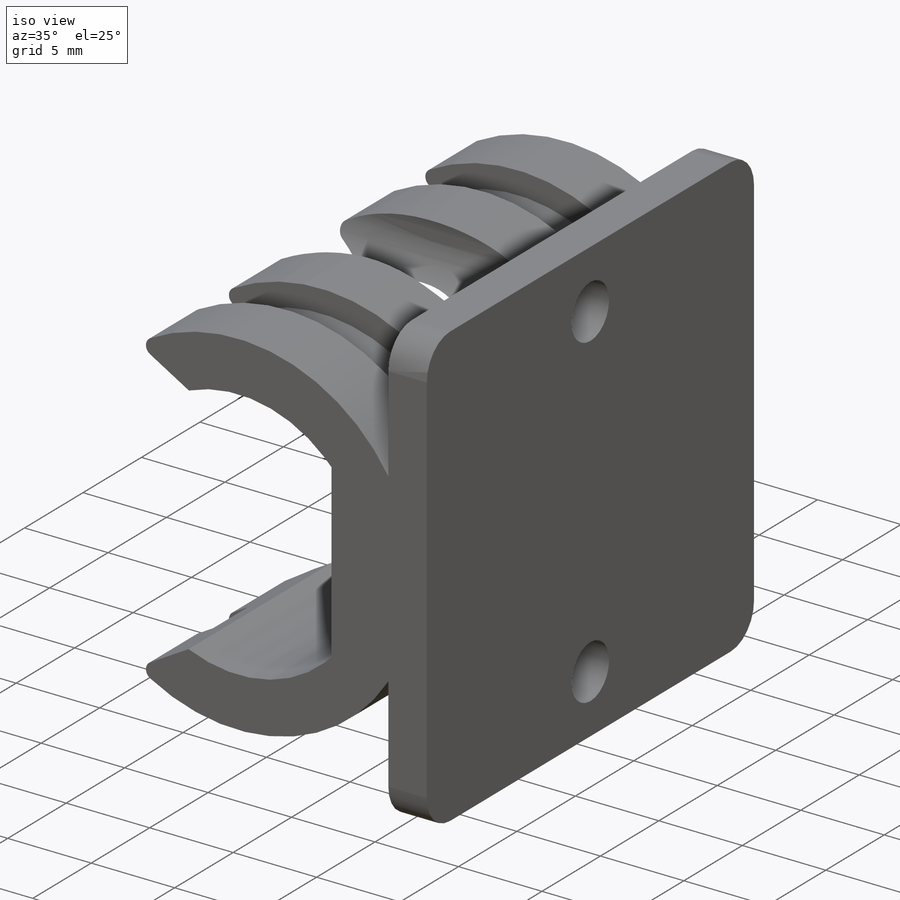
[diagram: iso view]
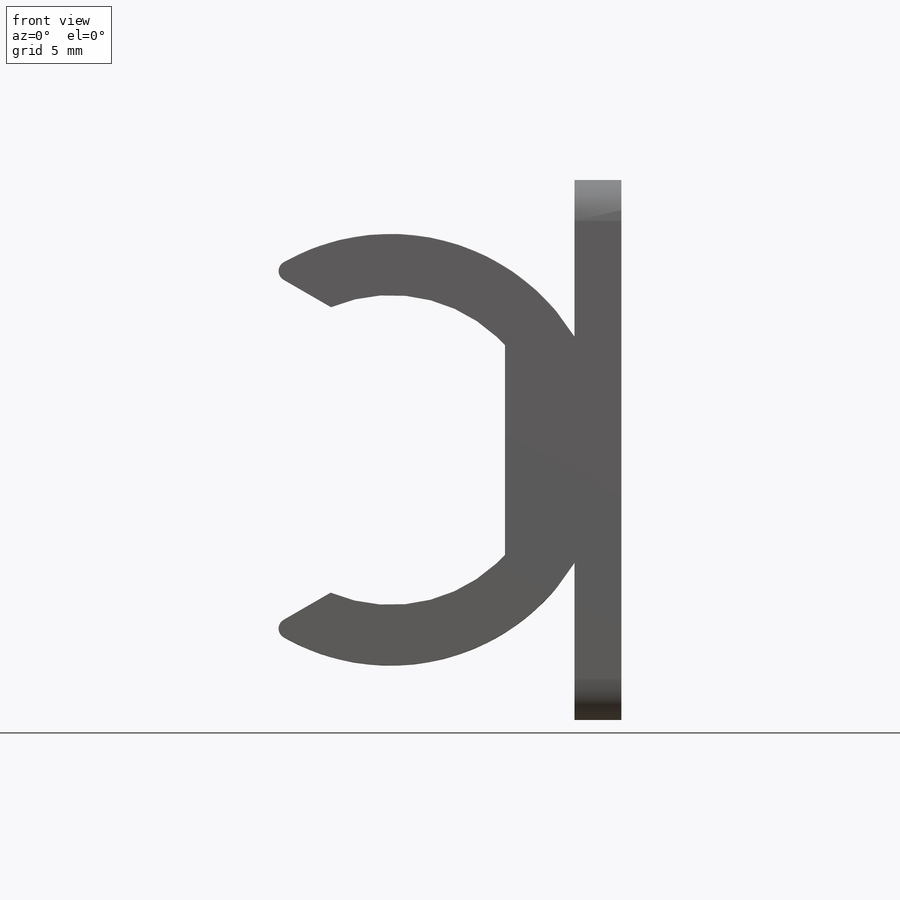
[diagram: front view]
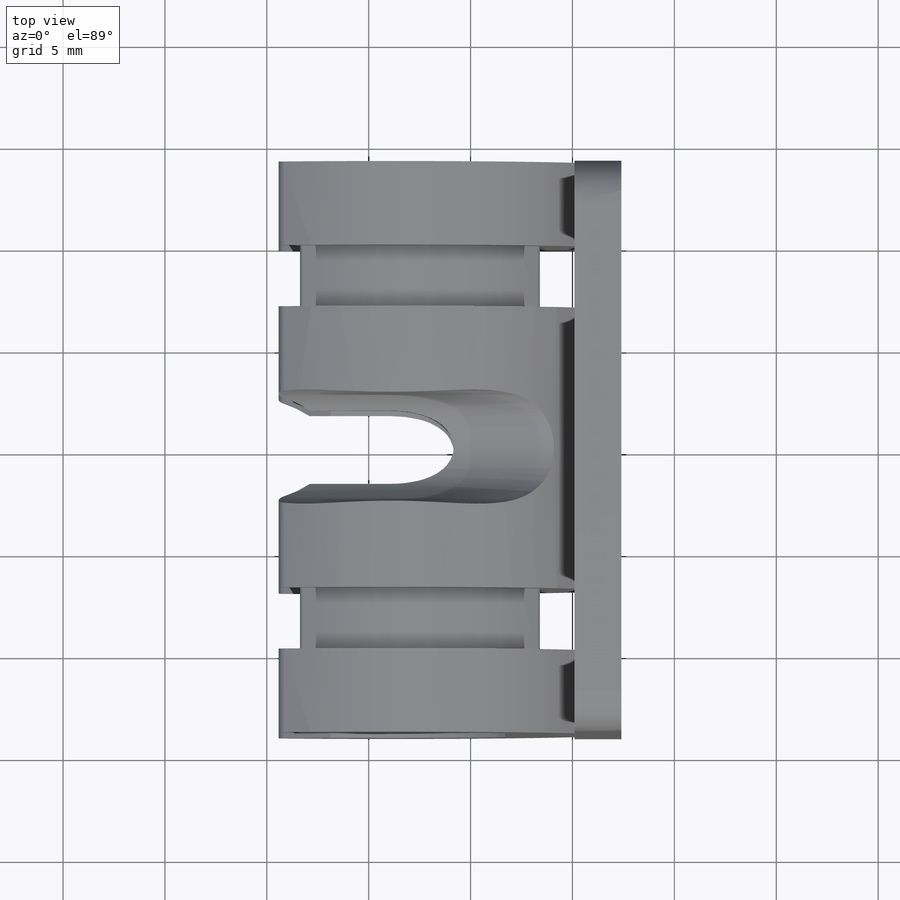
[diagram: top view]
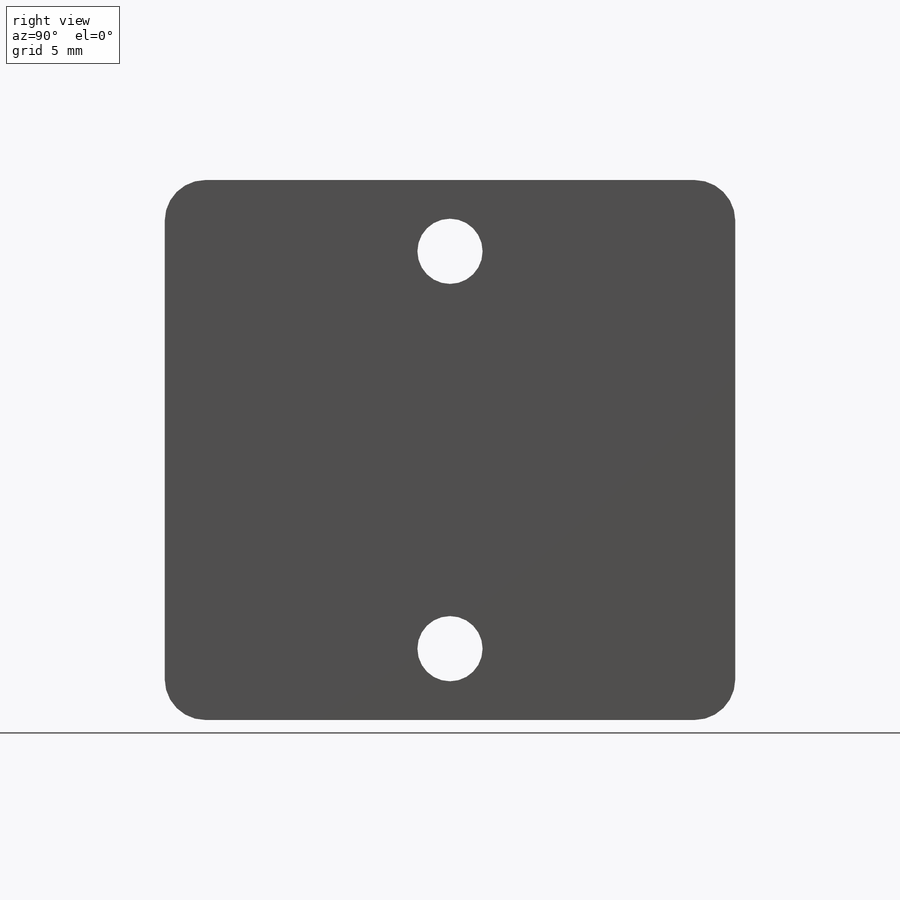
[diagram: right view]
SOLIDWORKS PART (.sldprt)
format: sldprt  version: not decoded by parser v0  size: 476,160 bytes
history: native  units: mm
features: sketch x14, cut_extrude x6, plane x5, extrude x5, fillet x4, mirror x2, material x1, sweep x1 (+10 scaffold rows collapsed)
feature tree (48):
  scaffold x10  (default folders/planes/origin — collapsed)
  material  "Material <sin especificar>"
  plane  "Alzado"
  plane  "Planta"
  plane  "Vista lateral"
  sketch  "Croquis1"
  extrude  "Saliente-Extruir1"  Depth=14.6mm
  sketch  "Croquis2"  dims[D1=5.6mm]
  extrude  "Saliente-Extruir2"  Depth=2.6mm
  mirror  "Simetría1"
  sketch  "Croquis3"  dims[D1=2.3mm D2=5.1mm]
  extrude  "Saliente-Extruir3"  [1 undecoded]
  sketch  "Croquis6"  dims[D1=3.2mm D3=3.0mm D2=9.75mm]
  cut_extrude  "Cortar-Extruir1"  Depth=20mm
  sketch  "Croquis7"  dims[D1=5.6mm]
  cut_extrude  "Cortar-Extruir2"  Depth=20mm
  sketch  "Croquis8"  dims[D1=5.6mm]
  cut_extrude  "Cortar-Extruir3"  Depth=33mm
  sketch  "Croquis9"  dims[c1.D1=~5.055389mm c1.D2=~2.586406mm c1.D3=~29.213594mm c2.D2=3.5mm c2.D4=2.0mm c2.D5=2.0mm c2.D6=3.5mm]
  cut_extrude  "Cortar-Extruir4"  Depth=33mm
  sketch  "Croquis10"  dims[c1.D1=1.7mm c1.D2=3.0mm c2.D1=1.7mm c2.D2=3.0mm c2.D3=3.0mm c2.D4=1.7mm]
  cut_extrude  "Cortar-Extruir5"  [1 undecoded]
  sketch  "Croquis11"
  cut_extrude  "Cortar-Extruir6"  [1 undecoded]
  fillet  "Redondeo1"  Radius=2mm
  fillet  "Redondeo3"  Radius=0.5mm
  plane  "Plano1"
  sketch  "Croquis12"  dims[D1=1.51mm]
  sketch  "Croquis13"
  plane  "Plano2"
  sketch  "Croquis15"  dims[D1=1.5mm D2=3.0mm]
  sweep  "Cortar-Barrer2"
  mirror  "Simetría3"
  sketch  "Croquis16"
  extrude  "Saliente-Extruir4"  [1 undecoded]
  sketch  "Croquis17"
  extrude  "Saliente-Extruir5"  [1 undecoded]
  fillet  "Redondeo6"  Radius=0.2mm
  fillet  "Redondeo7"  Radius=0.5mm
decode coverage: 19 of 32 modeling features carry decoded parameters
note: ~ marks probable driven/reference dimensions
note: 5 parameter values undecoded
summary: no parameter record found for 5 features
note: suppression state not decoded; provenance and decode notes live in map.json
